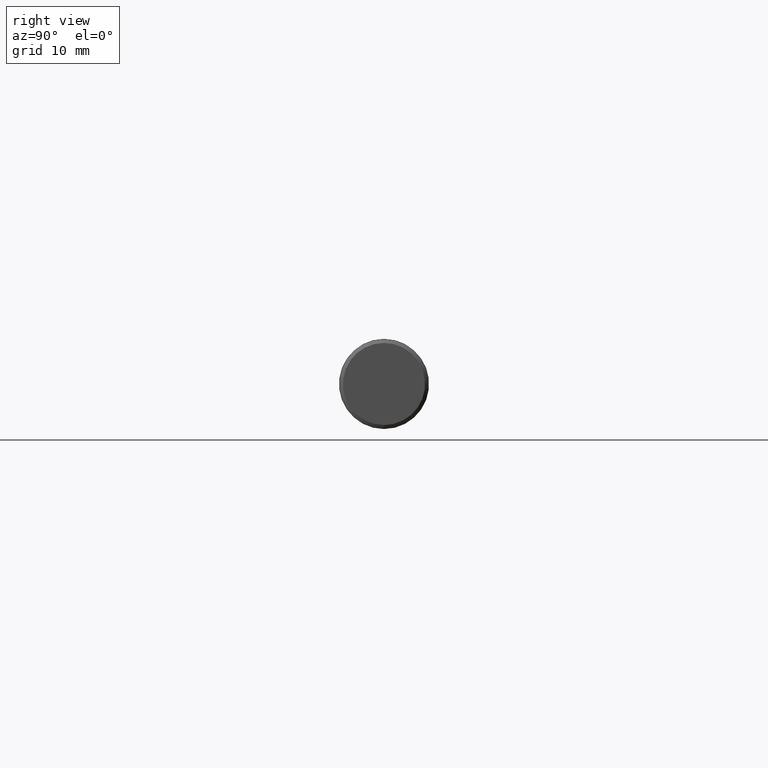
[diagram: clean part render]
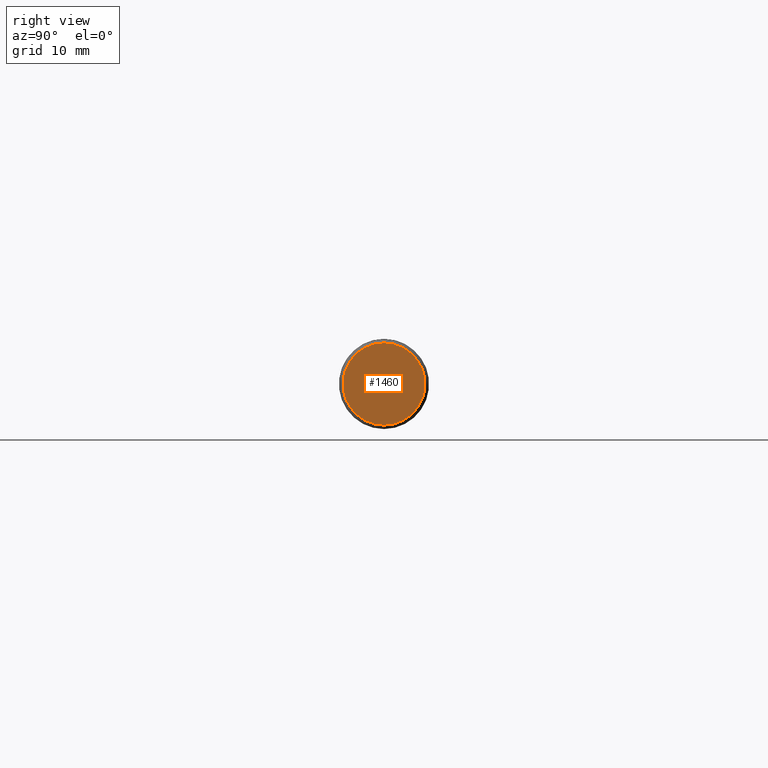
[diagram: same view with one face highlighted and labeled with its STEP entity id]
A machine part, right view. The second image highlights one B-rep face of the part: STEP entity #1460.
In plain terms, the highlighted planar face has unit normal (1, 0, -0).
Its self-contained STEP definition (entity closure, byte-faithful):
#648 = EDGE_LOOP ( 'NONE', ( #1549, #3113 ) ) ;
#1140 = PLANE ( 'NONE',  #3699 ) ;
#1460 = ADVANCED_FACE ( 'NONE', ( #7182 ), #1140, .T. ) ;
#1549 = ORIENTED_EDGE ( 'NONE', *, *, #7403, .T. ) ;
#2045 = VERTEX_POINT ( 'NONE', #6624 ) ;
#2051 = DIRECTION ( 'NONE',  ( 1.000000000000000000, -0.000000000000000000, -0.000000000000000000 ) ) ;
#2856 = EDGE_CURVE ( 'NONE', #2045, #7202, #3428, .T. ) ;
#3113 = ORIENTED_EDGE ( 'NONE', *, *, #2856, .T. ) ;
#3428 = CIRCLE ( 'NONE', #6815, 0.2281148159977136602 ) ;
#3699 = AXIS2_PLACEMENT_3D ( 'NONE', #6461, #5719, #5853 ) ;
#3764 = CIRCLE ( 'NONE', #4053, 0.2281148159977136602 ) ;
#4053 = AXIS2_PLACEMENT_3D ( 'NONE', #4741, #2051, #8053 ) ;
#4532 = DIRECTION ( 'NONE',  ( 1.000000000000000000, -0.000000000000000000, -0.000000000000000000 ) ) ;
#4741 = CARTESIAN_POINT ( 'NONE',  ( 4.000000000000000000, 0.000000000000000000, 0.000000000000000000 ) ) ;
#4931 = CARTESIAN_POINT ( 'NONE',  ( 4.000000000000000000, 0.000000000000000000, 0.2281148159977136602 ) ) ;
#5719 = DIRECTION ( 'NONE',  ( 1.000000000000000000, 0.000000000000000000, -0.000000000000000000 ) ) ;
#5853 = DIRECTION ( 'NONE',  ( -0.000000000000000000, 0.000000000000000000, -1.000000000000000000 ) ) ;
#6461 = CARTESIAN_POINT ( 'NONE',  ( 4.000000000000000000, 0.2474999999999999978, 0.000000000000000000 ) ) ;
#6624 = CARTESIAN_POINT ( 'NONE',  ( 4.000000000000000000, 2.793600792496874514E-17, -0.2281148159977136602 ) ) ;
#6815 = AXIS2_PLACEMENT_3D ( 'NONE', #7139, #4532, #7849 ) ;
#7139 = CARTESIAN_POINT ( 'NONE',  ( 4.000000000000000000, 0.000000000000000000, 0.000000000000000000 ) ) ;
#7182 = FACE_OUTER_BOUND ( 'NONE', #648, .T. ) ;
#7202 = VERTEX_POINT ( 'NONE', #4931 ) ;
#7403 = EDGE_CURVE ( 'NONE', #7202, #2045, #3764, .T. ) ;
#7849 = DIRECTION ( 'NONE',  ( 0.000000000000000000, 0.000000000000000000, -1.000000000000000000 ) ) ;
#8053 = DIRECTION ( 'NONE',  ( 0.000000000000000000, 0.000000000000000000, -1.000000000000000000 ) ) ;